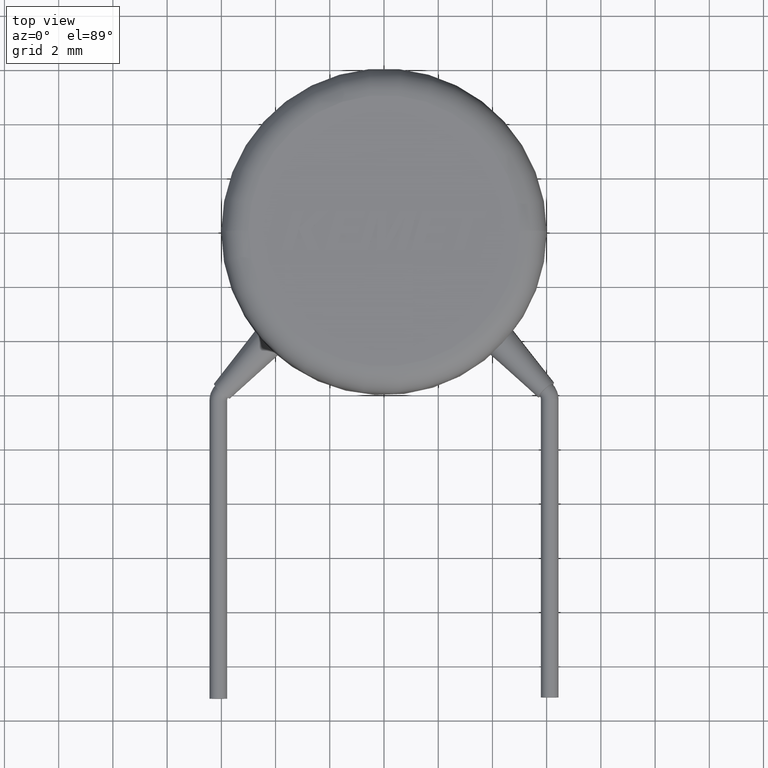
[diagram: clean part render]
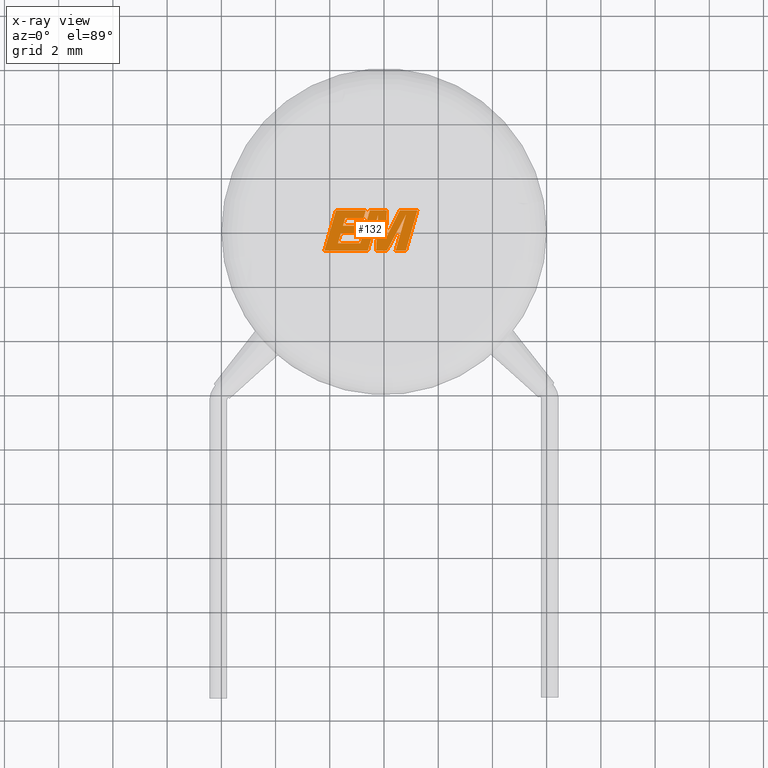
[diagram: x-ray — body ghosted, one internal face saturated and labeled with its STEP entity id]
A machine part, top view, then the same camera in x-ray: the body is ghosted and one INTERNAL B-rep face — a face not visible from any outside direction — is saturated and labeled: STEP entity #132.
In plain terms, the highlighted planar face has unit normal (0, 0, -1).
Its self-contained STEP definition (entity closure, byte-faithful):
#18 = VECTOR ( 'NONE', #1118, 1000.000000000000200 ) ;
#27 = VECTOR ( 'NONE', #99, 1000.000000000000000 ) ;
#29 = LINE ( 'NONE', #505, #2909 ) ;
#84 = VERTEX_POINT ( 'NONE', #2926 ) ;
#99 = DIRECTION ( 'NONE',  ( -0.2762517575166429900, -0.9610853065513830200, 0.0000000000000000000 ) ) ;
#112 = VECTOR ( 'NONE', #2811, 1000.000000000000000 ) ;
#121 = LINE ( 'NONE', #3698, #2793 ) ;
#122 = DIRECTION ( 'NONE',  ( 0.2732148821746316300, 0.9619530280415474800, 0.0000000000000000000 ) ) ;
#132 = ADVANCED_FACE ( 'NONE', ( #2356 ), #3497, .T. ) ;
#133 = VECTOR ( 'NONE', #2800, 1000.000000000000000 ) ;
#145 = ORIENTED_EDGE ( 'NONE', *, *, #1908, .F. ) ;
#158 = VECTOR ( 'NONE', #1863, 1000.000000000000000 ) ;
#213 = CARTESIAN_POINT ( 'NONE',  ( -1.773775654350945800, 0.7436502539244755900, 5.000000000000000000 ) ) ;
#221 = LINE ( 'NONE', #734, #133 ) ;
#236 = CARTESIAN_POINT ( 'NONE',  ( -1.697228537327381700, -0.4619453360510535900, 5.000000000000000000 ) ) ;
#261 = ORIENTED_EDGE ( 'NONE', *, *, #3693, .F. ) ;
#337 = LINE ( 'NONE', #3356, #1269 ) ;
#349 = ORIENTED_EDGE ( 'NONE', *, *, #1704, .F. ) ;
#382 = CARTESIAN_POINT ( 'NONE',  ( -0.5253591299591020600, 0.7436502539244755900, 5.000000000000000000 ) ) ;
#463 = EDGE_CURVE ( 'NONE', #2050, #2094, #121, .T. ) ;
#478 = EDGE_CURVE ( 'NONE', #3258, #1302, #29, .T. ) ;
#497 = VERTEX_POINT ( 'NONE', #801 ) ;
#503 = ORIENTED_EDGE ( 'NONE', *, *, #2463, .F. ) ;
#505 = CARTESIAN_POINT ( 'NONE',  ( -1.697228537327381700, -0.4619453360510535900, 5.000000000000000000 ) ) ;
#510 = DIRECTION ( 'NONE',  ( -0.2765379750249973800, -0.9610029908221274800, 0.0000000000000000000 ) ) ;
#512 = ORIENTED_EDGE ( 'NONE', *, *, #1998, .F. ) ;
#513 = CARTESIAN_POINT ( 'NONE',  ( -0.6738629815829199100, 0.7436502539244758100, 5.000000000000000000 ) ) ;
#518 = LINE ( 'NONE', #1601, #2779 ) ;
#550 = EDGE_CURVE ( 'NONE', #1430, #3253, #3714, .T. ) ;
#554 = VECTOR ( 'NONE', #3300, 1000.000000000000000 ) ;
#571 = VERTEX_POINT ( 'NONE', #2033 ) ;
#596 = EDGE_CURVE ( 'NONE', #2270, #1978, #2218, .T. ) ;
#674 = CARTESIAN_POINT ( 'NONE',  ( -0.5253591299591020600, 0.7436502539244755900, 5.000000000000000000 ) ) ;
#677 = CARTESIAN_POINT ( 'NONE',  ( -0.8742372493763728200, 0.1833293410177470100, 5.000000000000000000 ) ) ;
#700 = CARTESIAN_POINT ( 'NONE',  ( -0.8632683189594859700, -0.7452000000000007500, 5.000000000000000000 ) ) ;
#712 = VECTOR ( 'NONE', #2596, 999.9999999999998900 ) ;
#734 = CARTESIAN_POINT ( 'NONE',  ( 0.4255743545300639300, -0.7452000000000007500, 5.000000000000000000 ) ) ;
#741 = DIRECTION ( 'NONE',  ( 1.000000000000000000, 0.0000000000000000000, 0.0000000000000000000 ) ) ;
#742 = EDGE_CURVE ( 'NONE', #3247, #2272, #1452, .T. ) ;
#770 = EDGE_CURVE ( 'NONE', #571, #777, #2256, .T. ) ;
#777 = VERTEX_POINT ( 'NONE', #3301 ) ;
#798 = ORIENTED_EDGE ( 'NONE', *, *, #2488, .F. ) ;
#801 = CARTESIAN_POINT ( 'NONE',  ( -0.8718922611127919400, -0.4619453360510535900, 5.000000000000000000 ) ) ;
#846 = EDGE_CURVE ( 'NONE', #1371, #3286, #2298, .T. ) ;
#867 = EDGE_CURVE ( 'NONE', #777, #2270, #889, .T. ) ;
#876 = ORIENTED_EDGE ( 'NONE', *, *, #463, .F. ) ;
#881 = VECTOR ( 'NONE', #510, 1000.000000000000100 ) ;
#885 = ORIENTED_EDGE ( 'NONE', *, *, #742, .F. ) ;
#889 = LINE ( 'NONE', #3030, #112 ) ;
#960 = LINE ( 'NONE', #2937, #3557 ) ;
#969 = CARTESIAN_POINT ( 'NONE',  ( -2.202206822898613100, -0.7452000000000009700, 5.000000000000000000 ) ) ;
#981 = CARTESIAN_POINT ( 'NONE',  ( -0.7543531194299795100, 0.4602552528426150400, 5.000000000000000000 ) ) ;
#1005 = CARTESIAN_POINT ( 'NONE',  ( -0.2176722245781732600, 0.5802842469289246600, 5.000000000000000000 ) ) ;
#1019 = DIRECTION ( 'NONE',  ( 1.000000000000000000, 2.521457237837356800E-016, 0.0000000000000000000 ) ) ;
#1038 = LINE ( 'NONE', #1616, #2580 ) ;
#1069 = LINE ( 'NONE', #1512, #1442 ) ;
#1115 = LINE ( 'NONE', #3342, #554 ) ;
#1118 = DIRECTION ( 'NONE',  ( 0.2759782365590828200, 0.9611638845408928500, 0.0000000000000000000 ) ) ;
#1143 = CARTESIAN_POINT ( 'NONE',  ( 0.8080428464299531700, 0.5866673230992217600, 5.000000000000000000 ) ) ;
#1144 = DIRECTION ( 'NONE',  ( -1.000000000000000000, -9.098923155897428800E-017, 0.0000000000000000000 ) ) ;
#1166 = VECTOR ( 'NONE', #3065, 1000.000000000000000 ) ;
#1197 = ORIENTED_EDGE ( 'NONE', *, *, #3189, .F. ) ;
#1207 = DIRECTION ( 'NONE',  ( 0.4668459304955171500, 0.8843386665637631400, 0.0000000000000000000 ) ) ;
#1254 = EDGE_CURVE ( 'NONE', #1418, #1935, #2247, .T. ) ;
#1269 = VECTOR ( 'NONE', #1019, 1000.000000000000000 ) ;
#1273 = EDGE_CURVE ( 'NONE', #3286, #1985, #3528, .T. ) ;
#1302 = VERTEX_POINT ( 'NONE', #2455 ) ;
#1371 = VERTEX_POINT ( 'NONE', #2460 ) ;
#1388 = ORIENTED_EDGE ( 'NONE', *, *, #1254, .F. ) ;
#1395 = DIRECTION ( 'NONE',  ( 0.2740217765954109900, 0.9617234872620583600, 0.0000000000000000000 ) ) ;
#1418 = VERTEX_POINT ( 'NONE', #969 ) ;
#1430 = VERTEX_POINT ( 'NONE', #1889 ) ;
#1442 = VECTOR ( 'NONE', #1207, 1000.000000000000100 ) ;
#1449 = EDGE_CURVE ( 'NONE', #497, #3258, #1115, .T. ) ;
#1452 = LINE ( 'NONE', #1005, #1166 ) ;
#1512 = CARTESIAN_POINT ( 'NONE',  ( 0.1049447424367839800, -0.7452000000000005300, 5.000000000000000000 ) ) ;
#1537 = VECTOR ( 'NONE', #3288, 1000.000000000000200 ) ;
#1573 = CARTESIAN_POINT ( 'NONE',  ( -0.5982574826572557600, -0.7452000000000005300, 5.000000000000000000 ) ) ;
#1601 = CARTESIAN_POINT ( 'NONE',  ( 0.05143259615924362900, -0.3200034968579071900, 5.000000000000000000 ) ) ;
#1616 = CARTESIAN_POINT ( 'NONE',  ( -0.9528532074107296500, -0.09190799817433822900, 5.000000000000000000 ) ) ;
#1644 = LINE ( 'NONE', #2168, #3592 ) ;
#1701 = ORIENTED_EDGE ( 'NONE', *, *, #3349, .F. ) ;
#1704 = EDGE_CURVE ( 'NONE', #2762, #84, #960, .T. ) ;
#1720 = EDGE_LOOP ( 'NONE', ( #2244, #3181, #145, #2202, #261, #503, #885, #2049, #1388, #2110, #349, #512, #3250, #2714, #3208, #3333, #1701, #2974, #1893, #798, #876, #1197, #2099 ) ) ;
#1751 = DIRECTION ( 'NONE',  ( -0.2760118818968529400, -0.9611542233438699100, 0.0000000000000000000 ) ) ;
#1760 = LINE ( 'NONE', #3465, #18 ) ;
#1779 = LINE ( 'NONE', #981, #3421 ) ;
#1863 = DIRECTION ( 'NONE',  ( 1.000000000000000000, 3.776457229960374800E-016, 0.0000000000000000000 ) ) ;
#1889 = CARTESIAN_POINT ( 'NONE',  ( 0.8080428464299531700, 0.5866673230992217600, 5.000000000000000000 ) ) ;
#1893 = ORIENTED_EDGE ( 'NONE', *, *, #1449, .F. ) ;
#1908 = EDGE_CURVE ( 'NONE', #3253, #571, #221, .T. ) ;
#1934 = DIRECTION ( 'NONE',  ( -1.000000000000000000, -1.578431070763950500E-016, 0.0000000000000000000 ) ) ;
#1935 = VERTEX_POINT ( 'NONE', #1573 ) ;
#1978 = VERTEX_POINT ( 'NONE', #3632 ) ;
#1985 = VERTEX_POINT ( 'NONE', #2451 ) ;
#1998 = EDGE_CURVE ( 'NONE', #3685, #2762, #1779, .T. ) ;
#2033 = CARTESIAN_POINT ( 'NONE',  ( 0.8039142184371557100, -0.7452000000000003100, 5.000000000000000000 ) ) ;
#2047 = CARTESIAN_POINT ( 'NONE',  ( 0.1049447424367839800, -0.7452000000000005300, 5.000000000000000000 ) ) ;
#2049 = ORIENTED_EDGE ( 'NONE', *, *, #2901, .F. ) ;
#2050 = VERTEX_POINT ( 'NONE', #3495 ) ;
#2075 = AXIS2_PLACEMENT_3D ( 'NONE', #2339, #2642, #2667 ) ;
#2094 = VERTEX_POINT ( 'NONE', #382 ) ;
#2099 = ORIENTED_EDGE ( 'NONE', *, *, #596, .F. ) ;
#2110 = ORIENTED_EDGE ( 'NONE', *, *, #3558, .F. ) ;
#2167 = CARTESIAN_POINT ( 'NONE',  ( -1.513269187408787100, 0.1833293410177470100, 5.000000000000000000 ) ) ;
#2168 = CARTESIAN_POINT ( 'NONE',  ( -1.432688509474290900, 0.4602552528426150400, 5.000000000000000000 ) ) ;
#2202 = ORIENTED_EDGE ( 'NONE', *, *, #550, .F. ) ;
#2218 = LINE ( 'NONE', #2290, #712 ) ;
#2244 = ORIENTED_EDGE ( 'NONE', *, *, #867, .F. ) ;
#2247 = LINE ( 'NONE', #700, #158 ) ;
#2256 = LINE ( 'NONE', #3004, #1537 ) ;
#2259 = EDGE_CURVE ( 'NONE', #1985, #3685, #1644, .T. ) ;
#2270 = VERTEX_POINT ( 'NONE', #3339 ) ;
#2272 = VERTEX_POINT ( 'NONE', #3625 ) ;
#2290 = CARTESIAN_POINT ( 'NONE',  ( 0.5789700491369451600, 0.7436502539244758100, 5.000000000000000000 ) ) ;
#2298 = LINE ( 'NONE', #677, #2951 ) ;
#2339 = CARTESIAN_POINT ( 'NONE',  ( -0.0001286296256032375100, -0.0007872849118645318700, 5.000000000000000000 ) ) ;
#2356 = FACE_OUTER_BOUND ( 'NONE', #1720, .T. ) ;
#2434 = EDGE_CURVE ( 'NONE', #3694, #1371, #1038, .T. ) ;
#2439 = LINE ( 'NONE', #213, #881 ) ;
#2451 = CARTESIAN_POINT ( 'NONE',  ( -1.432688509474290900, 0.4602552528426150400, 5.000000000000000000 ) ) ;
#2455 = CARTESIAN_POINT ( 'NONE',  ( -1.591794605355640200, -0.09190799817433822900, 5.000000000000000000 ) ) ;
#2460 = CARTESIAN_POINT ( 'NONE',  ( -0.8742372493763728200, 0.1833293410177470100, 5.000000000000000000 ) ) ;
#2463 = EDGE_CURVE ( 'NONE', #2272, #3378, #337, .T. ) ;
#2488 = EDGE_CURVE ( 'NONE', #2094, #497, #3458, .T. ) ;
#2580 = VECTOR ( 'NONE', #3640, 999.9999999999998900 ) ;
#2596 = DIRECTION ( 'NONE',  ( -0.4443210308329528200, -0.8958676361826798400, 0.0000000000000000000 ) ) ;
#2613 = VECTOR ( 'NONE', #3585, 1000.000000000000100 ) ;
#2642 = DIRECTION ( 'NONE',  ( 0.0000000000000000000, 0.0000000000000000000, -1.000000000000000000 ) ) ;
#2667 = DIRECTION ( 'NONE',  ( -1.000000000000000000, 0.0000000000000000000, 0.0000000000000000000 ) ) ;
#2714 = ORIENTED_EDGE ( 'NONE', *, *, #1273, .F. ) ;
#2740 = DIRECTION ( 'NONE',  ( -1.000000000000000000, 0.0000000000000000000, 0.0000000000000000000 ) ) ;
#2762 = VERTEX_POINT ( 'NONE', #513 ) ;
#2779 = VECTOR ( 'NONE', #2829, 1000.000000000000100 ) ;
#2793 = VECTOR ( 'NONE', #1934, 1000.000000000000000 ) ;
#2800 = DIRECTION ( 'NONE',  ( 1.000000000000000000, 1.058098481546387500E-015, 0.0000000000000000000 ) ) ;
#2811 = DIRECTION ( 'NONE',  ( -1.000000000000000000, -3.065245663218765300E-016, 0.0000000000000000000 ) ) ;
#2829 = DIRECTION ( 'NONE',  ( 0.05375259206908483700, 0.9985542843760946100, 0.0000000000000000000 ) ) ;
#2834 = CARTESIAN_POINT ( 'NONE',  ( -0.2176722245781732600, 0.5802842469289246600, 5.000000000000000000 ) ) ;
#2901 = EDGE_CURVE ( 'NONE', #1935, #3247, #1760, .T. ) ;
#2906 = CARTESIAN_POINT ( 'NONE',  ( -1.513269187408787100, 0.1833293410177470100, 5.000000000000000000 ) ) ;
#2909 = VECTOR ( 'NONE', #1395, 1000.000000000000200 ) ;
#2926 = CARTESIAN_POINT ( 'NONE',  ( -1.773775654350945800, 0.7436502539244755900, 5.000000000000000000 ) ) ;
#2937 = CARTESIAN_POINT ( 'NONE',  ( -0.6738629815829199100, 0.7436502539244758100, 5.000000000000000000 ) ) ;
#2951 = VECTOR ( 'NONE', #2740, 1000.000000000000000 ) ;
#2965 = CARTESIAN_POINT ( 'NONE',  ( -0.9528532074107296500, -0.09190799817433822900, 5.000000000000000000 ) ) ;
#2974 = ORIENTED_EDGE ( 'NONE', *, *, #478, .F. ) ;
#3004 = CARTESIAN_POINT ( 'NONE',  ( 0.8039142184371557100, -0.7452000000000003100, 5.000000000000000000 ) ) ;
#3030 = CARTESIAN_POINT ( 'NONE',  ( 1.231969644425810800, 0.7436502539244760300, 5.000000000000000000 ) ) ;
#3065 = DIRECTION ( 'NONE',  ( -0.05596501978067877600, -0.9984327301130248000, 0.0000000000000000000 ) ) ;
#3181 = ORIENTED_EDGE ( 'NONE', *, *, #770, .F. ) ;
#3189 = EDGE_CURVE ( 'NONE', #1978, #2050, #518, .T. ) ;
#3194 = CARTESIAN_POINT ( 'NONE',  ( -1.591794605355640200, -0.09190799817433822900, 5.000000000000000000 ) ) ;
#3208 = ORIENTED_EDGE ( 'NONE', *, *, #846, .F. ) ;
#3215 = DIRECTION ( 'NONE',  ( 1.000000000000000000, 0.0000000000000000000, 0.0000000000000000000 ) ) ;
#3221 = CARTESIAN_POINT ( 'NONE',  ( -0.7543531194299795100, 0.4602552528426150400, 5.000000000000000000 ) ) ;
#3247 = VERTEX_POINT ( 'NONE', #2834 ) ;
#3250 = ORIENTED_EDGE ( 'NONE', *, *, #2259, .F. ) ;
#3253 = VERTEX_POINT ( 'NONE', #3422 ) ;
#3258 = VERTEX_POINT ( 'NONE', #236 ) ;
#3286 = VERTEX_POINT ( 'NONE', #2906 ) ;
#3288 = DIRECTION ( 'NONE',  ( 0.2763139702539122400, 0.9610674221107070600, 0.0000000000000000000 ) ) ;
#3300 = DIRECTION ( 'NONE',  ( -1.000000000000000000, 0.0000000000000000000, 0.0000000000000000000 ) ) ;
#3301 = CARTESIAN_POINT ( 'NONE',  ( 1.231969644425810800, 0.7436502539244760300, 5.000000000000000000 ) ) ;
#3319 = VECTOR ( 'NONE', #1751, 1000.000000000000000 ) ;
#3333 = ORIENTED_EDGE ( 'NONE', *, *, #2434, .F. ) ;
#3339 = CARTESIAN_POINT ( 'NONE',  ( 0.5789700491369451600, 0.7436502539244758100, 5.000000000000000000 ) ) ;
#3342 = CARTESIAN_POINT ( 'NONE',  ( -0.8718922611127919400, -0.4619453360510535900, 5.000000000000000000 ) ) ;
#3349 = EDGE_CURVE ( 'NONE', #1302, #3694, #3448, .T. ) ;
#3356 = CARTESIAN_POINT ( 'NONE',  ( -0.2919694204342807000, -0.7452000000000005300, 5.000000000000000000 ) ) ;
#3360 = VECTOR ( 'NONE', #3215, 1000.000000000000000 ) ;
#3378 = VERTEX_POINT ( 'NONE', #2047 ) ;
#3421 = VECTOR ( 'NONE', #122, 1000.000000000000100 ) ;
#3422 = CARTESIAN_POINT ( 'NONE',  ( 0.4255743545300639300, -0.7452000000000007500, 5.000000000000000000 ) ) ;
#3448 = LINE ( 'NONE', #3194, #3360 ) ;
#3458 = LINE ( 'NONE', #674, #27 ) ;
#3465 = CARTESIAN_POINT ( 'NONE',  ( -0.5982574826572557600, -0.7452000000000005300, 5.000000000000000000 ) ) ;
#3495 = CARTESIAN_POINT ( 'NONE',  ( 0.1086895195565335700, 0.7436502539244758100, 5.000000000000000000 ) ) ;
#3497 = PLANE ( 'NONE',  #2075 ) ;
#3528 = LINE ( 'NONE', #2167, #2613 ) ;
#3557 = VECTOR ( 'NONE', #1144, 1000.000000000000000 ) ;
#3558 = EDGE_CURVE ( 'NONE', #84, #1418, #2439, .T. ) ;
#3585 = DIRECTION ( 'NONE',  ( 0.2793947940878364600, 0.9601763114327572800, 0.0000000000000000000 ) ) ;
#3592 = VECTOR ( 'NONE', #741, 1000.000000000000000 ) ;
#3625 = CARTESIAN_POINT ( 'NONE',  ( -0.2919694204342807000, -0.7452000000000005300, 5.000000000000000000 ) ) ;
#3632 = CARTESIAN_POINT ( 'NONE',  ( 0.05143259615924362900, -0.3200034968579071900, 5.000000000000000000 ) ) ;
#3640 = DIRECTION ( 'NONE',  ( 0.2746459304916926100, 0.9615454294334472300, 0.0000000000000000000 ) ) ;
#3685 = VERTEX_POINT ( 'NONE', #3221 ) ;
#3693 = EDGE_CURVE ( 'NONE', #3378, #1430, #1069, .T. ) ;
#3694 = VERTEX_POINT ( 'NONE', #2965 ) ;
#3698 = CARTESIAN_POINT ( 'NONE',  ( 0.1086895195565335700, 0.7436502539244758100, 5.000000000000000000 ) ) ;
#3714 = LINE ( 'NONE', #1143, #3319 ) ;